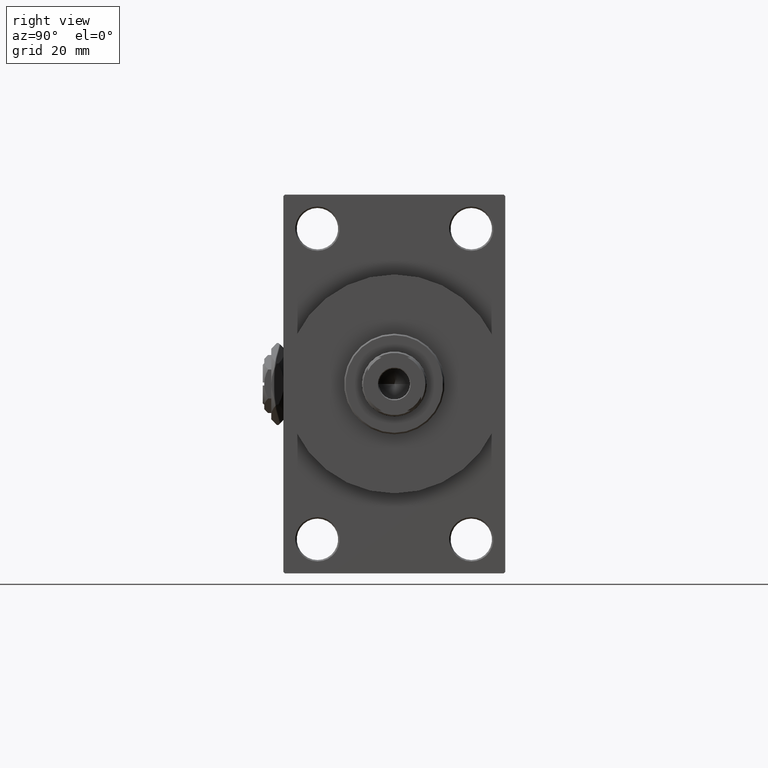
[diagram: clean part render]
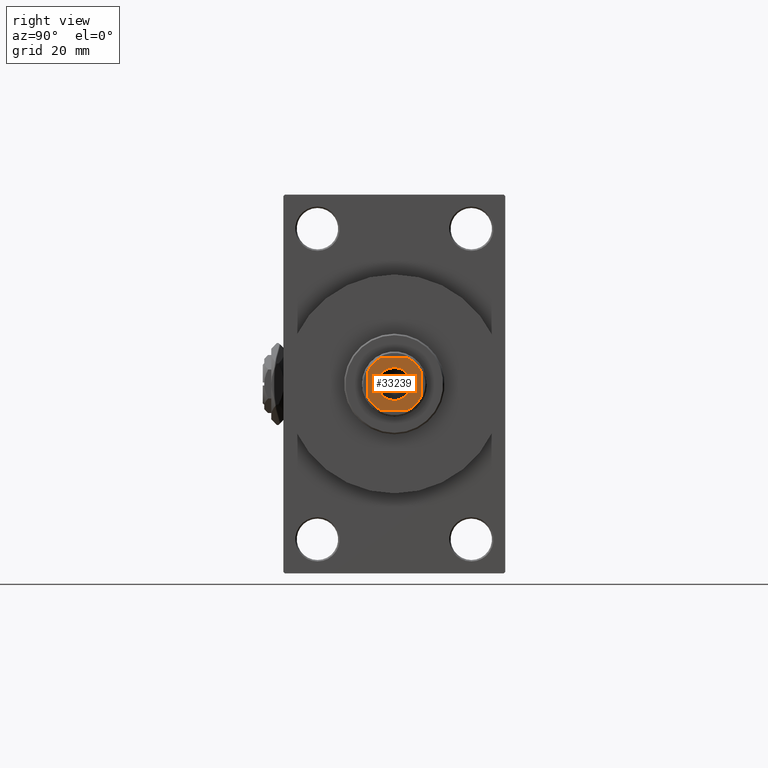
[diagram: same view with one face highlighted and labeled with its STEP entity id]
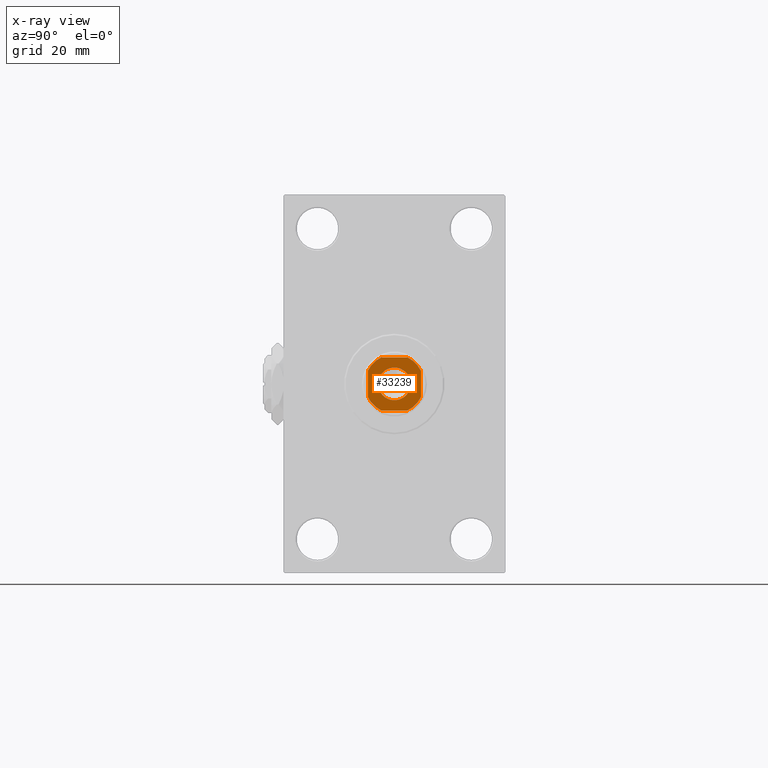
[diagram: x-ray of the same camera — body ghosted, the highlighted face saturated]
A machine part, right view. The second image highlights one B-rep face of the part: STEP entity #33239.
The next image is the same camera in x-ray: the body ghosted, the highlighted face saturated — about 0% of this face is hidden behind the body in this view.
In plain terms, the highlighted planar face has unit normal (1, 0, 0).
Its self-contained STEP definition (entity closure, byte-faithful):
#2063 = DIRECTION ( 'NONE',  ( -0.000000000000000000, 0.000000000000000000, 1.000000000000000000 ) ) ;
#2279 = VERTEX_POINT ( 'NONE', #43813 ) ;
#3261 = CARTESIAN_POINT ( 'NONE',  ( -9.000000000000001776, -9.000000000000001776, 142.0000000000000284 ) ) ;
#3336 = AXIS2_PLACEMENT_3D ( 'NONE', #41111, #22388, #37406 ) ;
#3732 = CARTESIAN_POINT ( 'NONE',  ( 4.358898943540733484, 8.999999999999998224, 142.0000000000000284 ) ) ;
#3956 = DIRECTION ( 'NONE',  ( 1.000000000000000000, 0.000000000000000000, 0.000000000000000000 ) ) ;
#4451 = CARTESIAN_POINT ( 'NONE',  ( 0.000000000000000000, 0.000000000000000000, 142.0000000000000284 ) ) ;
#4775 = CARTESIAN_POINT ( 'NONE',  ( -9.000000000000003553, 8.999999999999998224, 142.0000000000000284 ) ) ;
#5358 = ORIENTED_EDGE ( 'NONE', *, *, #8097, .T. ) ;
#5517 = VERTEX_POINT ( 'NONE', #25097 ) ;
#5684 = AXIS2_PLACEMENT_3D ( 'NONE', #6166, #13552, #16993 ) ;
#5878 = CARTESIAN_POINT ( 'NONE',  ( -4.358898943540612692, -9.000000000000001776, 142.0000000000000284 ) ) ;
#6115 = VERTEX_POINT ( 'NONE', #17098 ) ;
#6166 = CARTESIAN_POINT ( 'NONE',  ( 0.000000000000000000, 0.000000000000000000, 142.0000000000000284 ) ) ;
#7391 = EDGE_CURVE ( 'NONE', #17130, #5517, #36328, .T. ) ;
#7969 = CARTESIAN_POINT ( 'NONE',  ( -9.000000000000003553, 8.999999999999998224, 142.0000000000000284 ) ) ;
#8097 = EDGE_CURVE ( 'NONE', #2279, #22942, #34737, .T. ) ;
#8461 = DIRECTION ( 'NONE',  ( -1.927470528863119049E-16, 1.000000000000000000, -0.000000000000000000 ) ) ;
#8711 = LINE ( 'NONE', #4775, #10555 ) ;
#9711 = ORIENTED_EDGE ( 'NONE', *, *, #7391, .T. ) ;
#10240 = AXIS2_PLACEMENT_3D ( 'NONE', #41251, #47687, #28952 ) ;
#10398 = LINE ( 'NONE', #3261, #30277 ) ;
#10475 = EDGE_LOOP ( 'NONE', ( #35123, #5358 ) ) ;
#10555 = VECTOR ( 'NONE', #19296, 1000.000000000000000 ) ;
#10719 = ORIENTED_EDGE ( 'NONE', *, *, #36783, .T. ) ;
#11433 = AXIS2_PLACEMENT_3D ( 'NONE', #19166, #45508, #11789 ) ;
#11789 = DIRECTION ( 'NONE',  ( 1.000000000000000000, 0.000000000000000000, 0.000000000000000000 ) ) ;
#12033 = VECTOR ( 'NONE', #8461, 1000.000000000000000 ) ;
#12632 = AXIS2_PLACEMENT_3D ( 'NONE', #4451, #46019, #3956 ) ;
#13552 = DIRECTION ( 'NONE',  ( -0.000000000000000000, 0.000000000000000000, 1.000000000000000000 ) ) ;
#13912 = VERTEX_POINT ( 'NONE', #15437 ) ;
#15437 = CARTESIAN_POINT ( 'NONE',  ( -9.000000000000003553, 4.358898943540833848, 142.0000000000000284 ) ) ;
#16523 = AXIS2_PLACEMENT_3D ( 'NONE', #35742, #2063, #31551 ) ;
#16929 = ORIENTED_EDGE ( 'NONE', *, *, #32802, .T. ) ;
#16993 = DIRECTION ( 'NONE',  ( 1.000000000000000000, 0.000000000000000000, 0.000000000000000000 ) ) ;
#17098 = CARTESIAN_POINT ( 'NONE',  ( -4.358898943540841842, 8.999999999999998224, 142.0000000000000284 ) ) ;
#17130 = VERTEX_POINT ( 'NONE', #32914 ) ;
#19166 = CARTESIAN_POINT ( 'NONE',  ( 0.000000000000000000, 0.000000000000000000, 142.0000000000000284 ) ) ;
#19296 = DIRECTION ( 'NONE',  ( -1.000000000000000000, -0.000000000000000000, -0.000000000000000000 ) ) ;
#19543 = ORIENTED_EDGE ( 'NONE', *, *, #47260, .T. ) ;
#19824 = CIRCLE ( 'NONE', #3336, 9.999999999999973355 ) ;
#20947 = VECTOR ( 'NONE', #26904, 1000.000000000000000 ) ;
#21473 = EDGE_CURVE ( 'NONE', #13912, #24159, #30815, .T. ) ;
#22388 = DIRECTION ( 'NONE',  ( -0.000000000000000000, 0.000000000000000000, 1.000000000000000000 ) ) ;
#22942 = VERTEX_POINT ( 'NONE', #41163 ) ;
#23971 = VERTEX_POINT ( 'NONE', #3732 ) ;
#24159 = VERTEX_POINT ( 'NONE', #44753 ) ;
#24178 = FACE_OUTER_BOUND ( 'NONE', #25318, .T. ) ;
#25097 = CARTESIAN_POINT ( 'NONE',  ( 8.999999999999998224, -4.358898943540842730, 142.0000000000000284 ) ) ;
#25318 = EDGE_LOOP ( 'NONE', ( #38437, #45250, #27710, #16929, #37524, #10719, #19543, #9711 ) ) ;
#25335 = AXIS2_PLACEMENT_3D ( 'NONE', #28133, #42419, #28370 ) ;
#26904 = DIRECTION ( 'NONE',  ( 9.637352644315595243E-17, -1.000000000000000000, 0.000000000000000000 ) ) ;
#27388 = LINE ( 'NONE', #38706, #12033 ) ;
#27710 = ORIENTED_EDGE ( 'NONE', *, *, #44919, .T. ) ;
#28133 = CARTESIAN_POINT ( 'NONE',  ( 0.000000000000000000, 0.000000000000000000, 142.0000000000000284 ) ) ;
#28370 = DIRECTION ( 'NONE',  ( 1.000000000000000000, 0.000000000000000000, 0.000000000000000000 ) ) ;
#28952 = DIRECTION ( 'NONE',  ( 1.000000000000000000, 0.000000000000000000, 0.000000000000000000 ) ) ;
#30277 = VECTOR ( 'NONE', #43869, 1000.000000000000000 ) ;
#30815 = LINE ( 'NONE', #7969, #20947 ) ;
#31551 = DIRECTION ( 'NONE',  ( 1.000000000000000000, 0.000000000000000000, 0.000000000000000000 ) ) ;
#31857 = CARTESIAN_POINT ( 'NONE',  ( 8.999999999999998224, 4.358898943540736148, 142.0000000000000284 ) ) ;
#32039 = PLANE ( 'NONE',  #16523 ) ;
#32802 = EDGE_CURVE ( 'NONE', #6115, #13912, #38540, .T. ) ;
#32914 = CARTESIAN_POINT ( 'NONE',  ( 4.358898943540838289, -9.000000000000001776, 142.0000000000000284 ) ) ;
#33239 = ADVANCED_FACE ( 'NONE', ( #38708, #24178 ), #32039, .T. ) ;
#33394 = CIRCLE ( 'NONE', #11433, 10.00000000000002487 ) ;
#34069 = EDGE_CURVE ( 'NONE', #22942, #2279, #36224, .T. ) ;
#34737 = CIRCLE ( 'NONE', #25335, 5.549999999999998934 ) ;
#35123 = ORIENTED_EDGE ( 'NONE', *, *, #34069, .T. ) ;
#35742 = CARTESIAN_POINT ( 'NONE',  ( 0.000000000000000000, 0.000000000000000000, 142.0000000000000284 ) ) ;
#36224 = CIRCLE ( 'NONE', #12632, 5.549999999999998934 ) ;
#36328 = CIRCLE ( 'NONE', #5684, 10.00000000000007283 ) ;
#36783 = EDGE_CURVE ( 'NONE', #24159, #39811, #19824, .T. ) ;
#37406 = DIRECTION ( 'NONE',  ( 1.000000000000000000, 0.000000000000000000, 0.000000000000000000 ) ) ;
#37524 = ORIENTED_EDGE ( 'NONE', *, *, #21473, .T. ) ;
#38437 = ORIENTED_EDGE ( 'NONE', *, *, #42717, .T. ) ;
#38540 = CIRCLE ( 'NONE', #10240, 10.00000000000007105 ) ;
#38706 = CARTESIAN_POINT ( 'NONE',  ( 8.999999999999996447, 8.999999999999998224, 142.0000000000000284 ) ) ;
#38708 = FACE_BOUND ( 'NONE', #10475, .T. ) ;
#38944 = VERTEX_POINT ( 'NONE', #31857 ) ;
#39811 = VERTEX_POINT ( 'NONE', #5878 ) ;
#41111 = CARTESIAN_POINT ( 'NONE',  ( 0.000000000000000000, 0.000000000000000000, 142.0000000000000284 ) ) ;
#41163 = CARTESIAN_POINT ( 'NONE',  ( 5.549999999999998934, 0.000000000000000000, 142.0000000000000284 ) ) ;
#41251 = CARTESIAN_POINT ( 'NONE',  ( 0.000000000000000000, 0.000000000000000000, 142.0000000000000284 ) ) ;
#42419 = DIRECTION ( 'NONE',  ( 0.000000000000000000, -0.000000000000000000, -1.000000000000000000 ) ) ;
#42717 = EDGE_CURVE ( 'NONE', #5517, #38944, #27388, .T. ) ;
#43813 = CARTESIAN_POINT ( 'NONE',  ( -5.549999999999998934, 6.796789735267809794E-16, 142.0000000000000284 ) ) ;
#43869 = DIRECTION ( 'NONE',  ( 1.000000000000000000, 0.000000000000000000, 0.000000000000000000 ) ) ;
#44753 = CARTESIAN_POINT ( 'NONE',  ( -9.000000000000003553, -4.358898943540610915, 142.0000000000000284 ) ) ;
#44919 = EDGE_CURVE ( 'NONE', #23971, #6115, #8711, .T. ) ;
#45250 = ORIENTED_EDGE ( 'NONE', *, *, #47815, .T. ) ;
#45508 = DIRECTION ( 'NONE',  ( -0.000000000000000000, 0.000000000000000000, 1.000000000000000000 ) ) ;
#46019 = DIRECTION ( 'NONE',  ( 0.000000000000000000, -0.000000000000000000, -1.000000000000000000 ) ) ;
#47260 = EDGE_CURVE ( 'NONE', #39811, #17130, #10398, .T. ) ;
#47687 = DIRECTION ( 'NONE',  ( -0.000000000000000000, 0.000000000000000000, 1.000000000000000000 ) ) ;
#47815 = EDGE_CURVE ( 'NONE', #38944, #23971, #33394, .T. ) ;